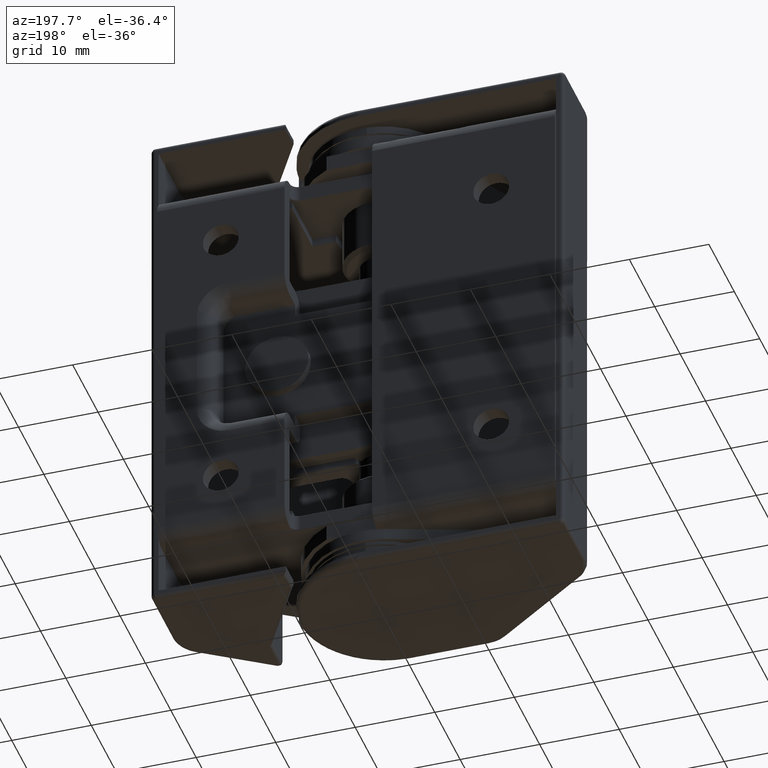
[diagram: clean part render]
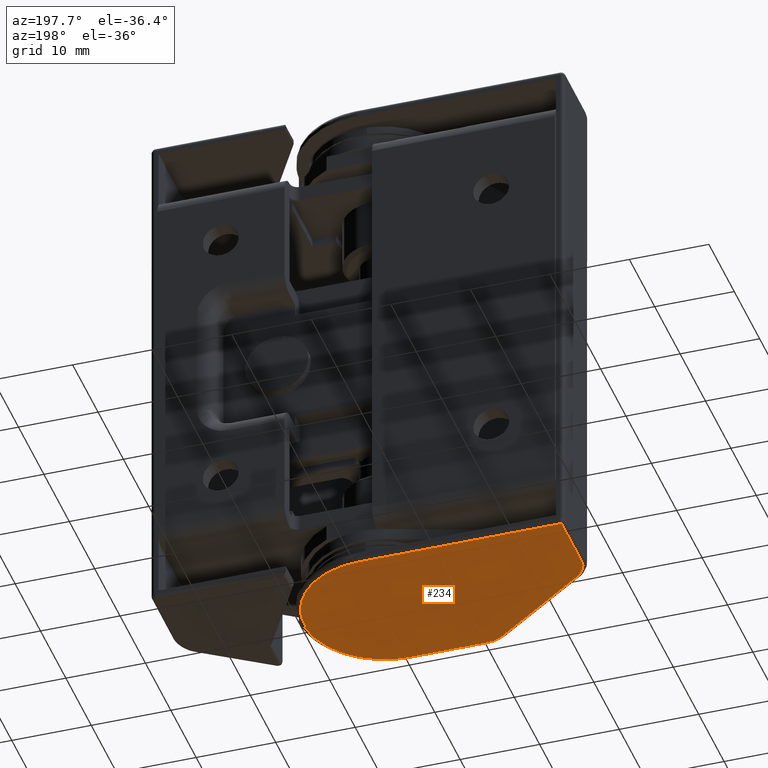
[diagram: same view with one face highlighted and labeled with its STEP entity id]
A machine part, auxiliary view. The second image highlights one B-rep face of the part: STEP entity #234.
In plain terms, the highlighted face is a freeform B-spline surface patch.
Its self-contained STEP definition (entity closure, byte-faithful):
#119=CARTESIAN_POINT('',(-27.282602430308259,11.008989960848480,0.0));
#120=CARTESIAN_POINT('',(11.970341114815490,11.008989960848480,0.0));
#121=CARTESIAN_POINT('',(-27.282602430308259,-11.208990502654700,0.0));
#122=CARTESIAN_POINT('',(11.970341114815490,-11.208990502654700,0.0));
#123=B_SPLINE_SURFACE_WITH_KNOTS('',1,1,((#119,#121),(#120,#122)),.UNSPECIFIED.,.F.,.F.,.U.,(2,2),(2,2),(0.0,39.252943545123742),(0.0,22.217980463503181),.UNSPECIFIED.);
#124=CARTESIAN_POINT('',(-24.037034058465998,-0.790063505425658,0.0));
#125=VERTEX_POINT('',#124);
#126=CARTESIAN_POINT('',(-25.500000000000000,2.056072865982175,0.0));
#127=VERTEX_POINT('',#126);
#128=CARTESIAN_POINT('',(-24.037034058465998,-0.790063505425658,0.0));
#129=CARTESIAN_POINT('',(-25.500000000000004,0.257009108247781,0.0));
#130=CARTESIAN_POINT('',(-25.500000000000000,2.056072865982175,0.0));
#138=(BOUNDED_CURVE()B_SPLINE_CURVE(2,(#128,#129,#130),.UNSPECIFIED.,.F.,.U.)CURVE()GEOMETRIC_REPRESENTATION_ITEM()QUASI_UNIFORM_CURVE()RATIONAL_B_SPLINE_CURVE((1.0,0.889384543094341,1.0))REPRESENTATION_ITEM(''));
#139=EDGE_CURVE('',#125,#127,#138,.T.);
#140=ORIENTED_EDGE('',*,*,#139,.T.);
#141=CARTESIAN_POINT('',(-25.500000000000000,10.0,0.0));
#142=VERTEX_POINT('',#141);
#143=CARTESIAN_POINT('',(-25.500000000000000,2.056072865982175,0.0));
#144=CARTESIAN_POINT('',(-25.500000000000000,10.0,0.0));
#145=QUASI_UNIFORM_CURVE('',1,(#143,#144),.UNSPECIFIED.,.F.,.U.);
#146=EDGE_CURVE('',#127,#142,#145,.T.);
#147=ORIENTED_EDGE('',*,*,#146,.T.);
#148=CARTESIAN_POINT('',(-1.155237E-013,10.0,0.0));
#149=VERTEX_POINT('',#148);
#150=CARTESIAN_POINT('',(-25.500000000000000,10.0,0.0));
#151=CARTESIAN_POINT('',(-1.155237E-013,10.0,0.0));
#152=QUASI_UNIFORM_CURVE('',1,(#150,#151),.UNSPECIFIED.,.F.,.U.);
#153=EDGE_CURVE('',#142,#149,#152,.T.);
#154=ORIENTED_EDGE('',*,*,#153,.T.);
#155=CARTESIAN_POINT('',(9.988655696858501,0.476190476190079,0.0));
#156=VERTEX_POINT('',#155);
#157=CARTESIAN_POINT('',(-1.136868E-013,10.0,0.0));
#158=CARTESIAN_POINT('',(9.534625892456187,10.0,0.0));
#159=CARTESIAN_POINT('',(9.988655696858491,0.476190476190081,0.0));
#167=(BOUNDED_CURVE()B_SPLINE_CURVE(2,(#157,#158,#159),.UNSPECIFIED.,.F.,.U.)CURVE()GEOMETRIC_REPRESENTATION_ITEM()QUASI_UNIFORM_CURVE()RATIONAL_B_SPLINE_CURVE((1.0,0.723746864455732,1.0))REPRESENTATION_ITEM(''));
#168=EDGE_CURVE('',#149,#156,#167,.T.);
#169=ORIENTED_EDGE('',*,*,#168,.T.);
#170=CARTESIAN_POINT('',(9.999062611602520,-0.500000000000000,0.0));
#171=VERTEX_POINT('',#170);
#172=CARTESIAN_POINT('',(9.988655696858501,0.476190476190079,0.0));
#173=CARTESIAN_POINT('',(9.992477232881548,0.394918748402637,0.0));
#174=CARTESIAN_POINT('',(9.997737610269834,0.252612495157640,0.0));
#175=CARTESIAN_POINT('',(9.999547885985752,0.110230288891236,0.0));
#176=CARTESIAN_POINT('',(9.999989421134353,0.008526992152636,0.0));
#177=CARTESIAN_POINT('',(9.999500313307149,-0.174543196218490,0.0));
#178=CARTESIAN_POINT('',(9.999282325663026,-0.357612480719926,0.0));
#179=CARTESIAN_POINT('',(9.999062611602520,-0.500000000000000,0.0));
#180=B_SPLINE_CURVE_WITH_KNOTS('',3,(#172,#173,#174,#175,#176,#177,#178,#179),.UNSPECIFIED.,.F.,.U.,(4,1,2,1,4),(0.000004272367361,0.244096801680476,0.427166058149096,0.549212112141976,0.976375066239407),.UNSPECIFIED.);
#181=EDGE_CURVE('',#156,#171,#180,.T.);
#182=ORIENTED_EDGE('',*,*,#181,.T.);
#183=CARTESIAN_POINT('',(10.187737727287519,-0.500000000000000,0.0));
#184=VERTEX_POINT('',#183);
#185=CARTESIAN_POINT('',(9.999062611602520,-0.500000000000000,0.0));
#186=CARTESIAN_POINT('',(10.187737727287519,-0.500000000000000,0.0));
#187=QUASI_UNIFORM_CURVE('',1,(#185,#186),.UNSPECIFIED.,.F.,.U.);
#188=EDGE_CURVE('',#171,#184,#187,.T.);
#189=ORIENTED_EDGE('',*,*,#188,.T.);
#190=CARTESIAN_POINT('',(-1.136868E-013,-10.199999999999999,0.0));
#191=VERTEX_POINT('',#190);
#192=CARTESIAN_POINT('',(10.187737727287530,-0.500000000000000,0.0));
#193=CARTESIAN_POINT('',(9.711675216666613,-10.200000000000001,0.0));
#194=CARTESIAN_POINT('',(-1.136868E-013,-10.199999999999999,0.0));
#202=(BOUNDED_CURVE()B_SPLINE_CURVE(2,(#192,#193,#194),.UNSPECIFIED.,.F.,.U.)CURVE()GEOMETRIC_REPRESENTATION_ITEM()QUASI_UNIFORM_CURVE()RATIONAL_B_SPLINE_CURVE((1.0,0.724230490880886,1.0))REPRESENTATION_ITEM(''));
#203=EDGE_CURVE('',#184,#191,#202,.T.);
#204=ORIENTED_EDGE('',*,*,#203,.T.);
#205=CARTESIAN_POINT('',(-9.766047724632299,-10.199999999999999,0.0));
#206=VERTEX_POINT('',#205);
#207=CARTESIAN_POINT('',(-1.136868E-013,-10.199999999999999,0.0));
#208=CARTESIAN_POINT('',(-9.766047724632299,-10.199999999999999,0.0));
#209=QUASI_UNIFORM_CURVE('',1,(#207,#208),.UNSPECIFIED.,.F.,.U.);
#210=EDGE_CURVE('',#191,#206,#209,.T.);
#211=ORIENTED_EDGE('',*,*,#210,.T.);
#212=CARTESIAN_POINT('',(-11.803081783098200,-9.546136371407769,0.0));
#213=VERTEX_POINT('',#212);
#214=CARTESIAN_POINT('',(-9.766047724632299,-10.199999999999999,0.0));
#215=CARTESIAN_POINT('',(-10.889505965579156,-10.200000000000001,0.0));
#216=CARTESIAN_POINT('',(-11.803081783098181,-9.546136371407741,0.0));
#224=(BOUNDED_CURVE()B_SPLINE_CURVE(2,(#214,#215,#216),.UNSPECIFIED.,.F.,.U.)CURVE()GEOMETRIC_REPRESENTATION_ITEM()QUASI_UNIFORM_CURVE()RATIONAL_B_SPLINE_CURVE((1.0,0.952150676206821,1.0))REPRESENTATION_ITEM(''));
#225=EDGE_CURVE('',#206,#213,#224,.T.);
#226=ORIENTED_EDGE('',*,*,#225,.T.);
#227=CARTESIAN_POINT('',(-11.803081783098200,-9.546136371407769,0.0));
#228=CARTESIAN_POINT('',(-24.037034058465998,-0.790063505425658,0.0));
#229=QUASI_UNIFORM_CURVE('',1,(#227,#228),.UNSPECIFIED.,.F.,.U.);
#230=EDGE_CURVE('',#213,#125,#229,.T.);
#231=ORIENTED_EDGE('',*,*,#230,.T.);
#232=EDGE_LOOP('',(#140,#147,#154,#169,#182,#189,#204,#211,#226,#231));
#233=FACE_OUTER_BOUND('',#232,.T.);
#234=ADVANCED_FACE('',(#233),#123,.T.);